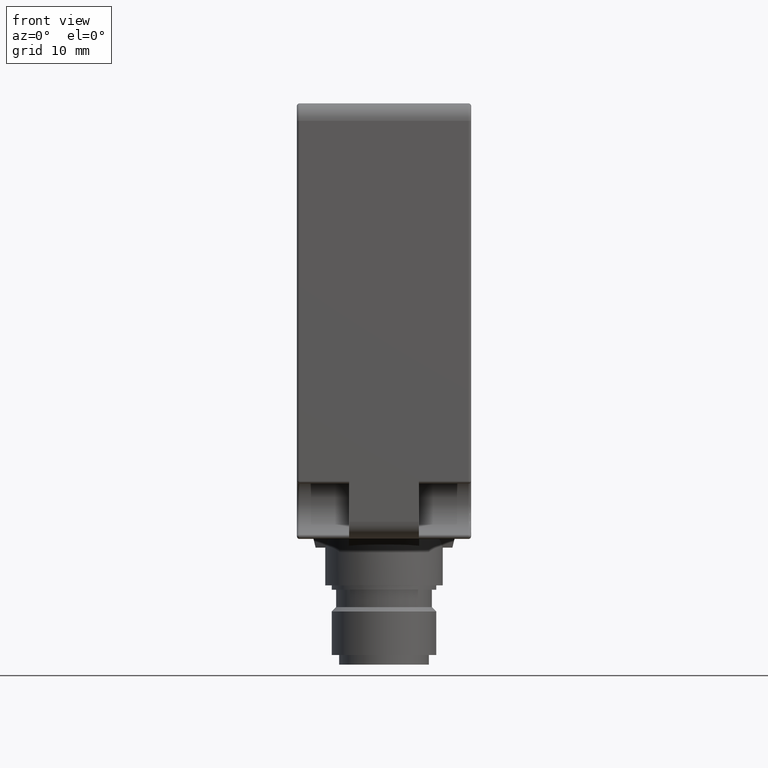
[diagram: clean part render]
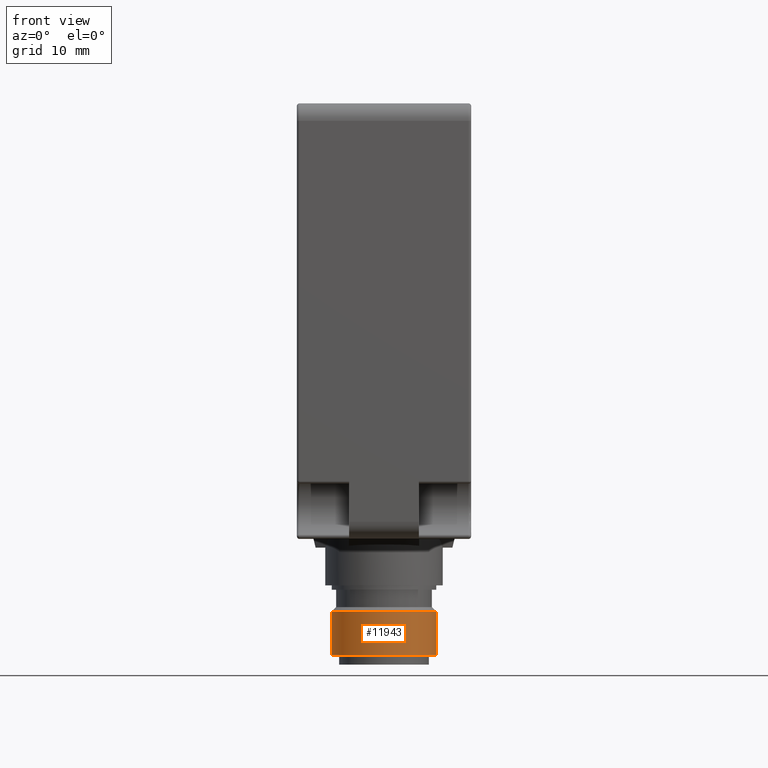
[diagram: same view with one face highlighted and labeled with its STEP entity id]
A machine part, front view. The second image highlights one B-rep face of the part: STEP entity #11943.
In plain terms, the highlighted cylindrical surface (partial cylindrical patch) has radius 6 mm, axis along (-0, -0, 1).
Its self-contained STEP definition (entity closure, byte-faithful):
#677 = VERTEX_POINT ( 'NONE', #4007 ) ;
#1276 = CARTESIAN_POINT ( 'NONE',  ( 6.000000000000001800, 18.25000000000000400, -38.33000000000000500 ) ) ;
#1964 = CARTESIAN_POINT ( 'NONE',  ( 6.000000000000001800, 18.25000000000000400, -38.33000000000000500 ) ) ;
#2015 = CARTESIAN_POINT ( 'NONE',  ( 6.000000000000004400, 18.25000000000000400, -33.33000000000000500 ) ) ;
#2069 = LINE ( 'NONE', #1964, #4306 ) ;
#2105 = EDGE_CURVE ( 'NONE', #13516, #13245, #2069, .T. ) ;
#2420 = ORIENTED_EDGE ( 'NONE', *, *, #6533, .F. ) ;
#2548 = CARTESIAN_POINT ( 'NONE',  ( -6.000000000000000000, 18.25000000000000400, -38.33000000000000500 ) ) ;
#2799 = CIRCLE ( 'NONE', #8657, 6.000000000000004400 ) ;
#3081 = EDGE_CURVE ( 'NONE', #13245, #3110, #2799, .T. ) ;
#3110 = VERTEX_POINT ( 'NONE', #8938 ) ;
#3468 = CYLINDRICAL_SURFACE ( 'NONE', #4470, 6.000000000000000900 ) ;
#4007 = CARTESIAN_POINT ( 'NONE',  ( -6.000000000000000000, 18.25000000000000400, -38.33000000000000500 ) ) ;
#4150 = ORIENTED_EDGE ( 'NONE', *, *, #2105, .T. ) ;
#4219 = CIRCLE ( 'NONE', #6217, 6.000000000000000900 ) ;
#4306 = VECTOR ( 'NONE', #10731, 1000.000000000000000 ) ;
#4458 = CARTESIAN_POINT ( 'NONE',  ( 8.673617379884035500E-016, 18.25000000000000400, -38.33000000000000500 ) ) ;
#4470 = AXIS2_PLACEMENT_3D ( 'NONE', #9122, #10220, #8084 ) ;
#4478 = DIRECTION ( 'NONE',  ( 0.0000000000000000000, 0.0000000000000000000, -1.000000000000000000 ) ) ;
#5566 = DIRECTION ( 'NONE',  ( -1.000000000000000000, 0.0000000000000000000, 0.0000000000000000000 ) ) ;
#6217 = AXIS2_PLACEMENT_3D ( 'NONE', #4458, #12069, #5566 ) ;
#6533 = EDGE_CURVE ( 'NONE', #677, #3110, #13764, .T. ) ;
#7802 = FACE_OUTER_BOUND ( 'NONE', #12203, .T. ) ;
#8084 = DIRECTION ( 'NONE',  ( 1.000000000000000000, 0.0000000000000000000, 0.0000000000000000000 ) ) ;
#8657 = AXIS2_PLACEMENT_3D ( 'NONE', #11015, #4478, #12096 ) ;
#8938 = CARTESIAN_POINT ( 'NONE',  ( -6.000000000000002700, 18.25000000000000400, -33.33000000000000500 ) ) ;
#9122 = CARTESIAN_POINT ( 'NONE',  ( 8.673617379884035500E-016, 18.25000000000000400, -38.33000000000000500 ) ) ;
#10186 = ORIENTED_EDGE ( 'NONE', *, *, #10624, .F. ) ;
#10220 = DIRECTION ( 'NONE',  ( -0.0000000000000000000, -0.0000000000000000000, 1.000000000000000000 ) ) ;
#10305 = DIRECTION ( 'NONE',  ( -0.0000000000000000000, -0.0000000000000000000, 1.000000000000000000 ) ) ;
#10624 = EDGE_CURVE ( 'NONE', #13516, #677, #4219, .T. ) ;
#10681 = ORIENTED_EDGE ( 'NONE', *, *, #3081, .T. ) ;
#10731 = DIRECTION ( 'NONE',  ( -0.0000000000000000000, -0.0000000000000000000, 1.000000000000000000 ) ) ;
#10885 = VECTOR ( 'NONE', #10305, 1000.000000000000000 ) ;
#11015 = CARTESIAN_POINT ( 'NONE',  ( 9.215718466126787700E-016, 18.25000000000000400, -33.33000000000000500 ) ) ;
#11943 = ADVANCED_FACE ( 'NONE', ( #7802 ), #3468, .T. ) ;
#12069 = DIRECTION ( 'NONE',  ( 0.0000000000000000000, 0.0000000000000000000, -1.000000000000000000 ) ) ;
#12096 = DIRECTION ( 'NONE',  ( -1.000000000000000000, 0.0000000000000000000, 0.0000000000000000000 ) ) ;
#12203 = EDGE_LOOP ( 'NONE', ( #2420, #10186, #4150, #10681 ) ) ;
#13245 = VERTEX_POINT ( 'NONE', #2015 ) ;
#13516 = VERTEX_POINT ( 'NONE', #1276 ) ;
#13764 = LINE ( 'NONE', #2548, #10885 ) ;